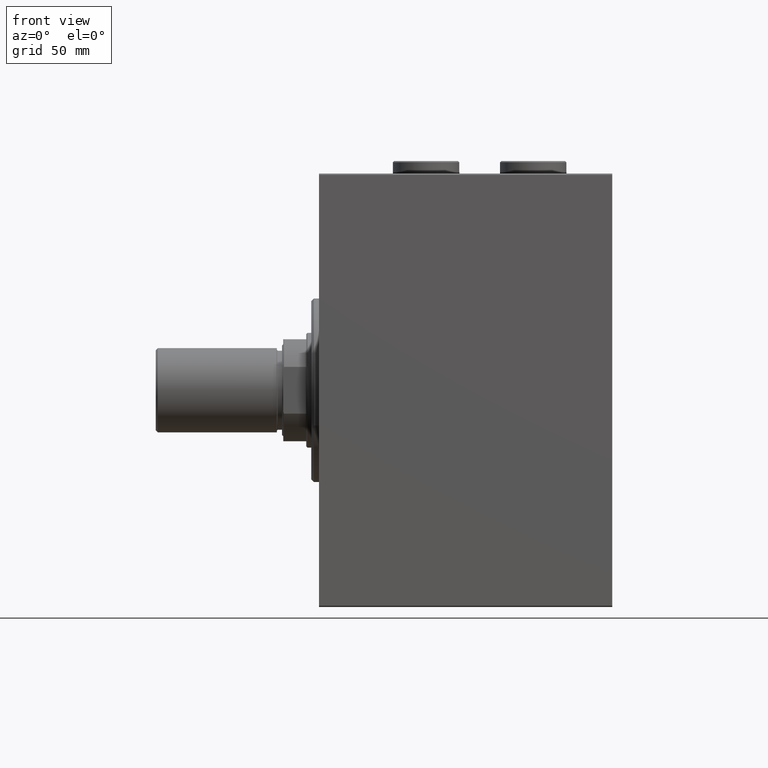
[diagram: clean part render]
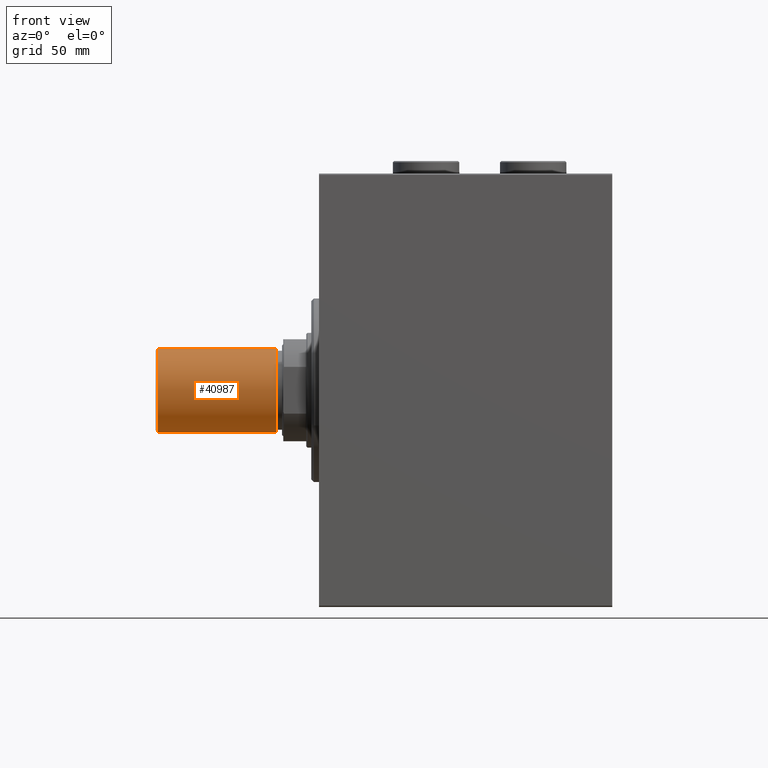
[diagram: same view with one face highlighted and labeled with its STEP entity id]
A machine part, front view. The second image highlights one B-rep face of the part: STEP entity #40987.
In plain terms, the highlighted cylindrical surface (partial cylindrical patch) has radius 16.5 mm, axis along (-1, -0, 0).
Its self-contained STEP definition (entity closure, byte-faithful):
#46 = CARTESIAN_POINT ( 'NONE',  ( 16.50000000000000000, 2.020667218593133100E-15, 47.50000000000000000 ) ) ;
#773 = DIRECTION ( 'NONE',  ( -0.000000000000000000, -0.000000000000000000, -1.000000000000000000 ) ) ;
#1655 = CARTESIAN_POINT ( 'NONE',  ( 0.000000000000000000, 0.000000000000000000, 47.50000000000000000 ) ) ;
#3920 = EDGE_CURVE ( 'NONE', #22239, #15356, #14854, .T. ) ;
#4379 = EDGE_CURVE ( 'NONE', #31624, #21369, #9059, .T. ) ;
#7926 = FACE_OUTER_BOUND ( 'NONE', #34025, .T. ) ;
#8413 = CARTESIAN_POINT ( 'NONE',  ( 16.50000000000000000, 2.020667218593133100E-15, 47.50000000000000000 ) ) ;
#9059 = CIRCLE ( 'NONE', #38511, 16.50000000000000000 ) ;
#10427 = LINE ( 'NONE', #46, #20293 ) ;
#10737 = ORIENTED_EDGE ( 'NONE', *, *, #4379, .F. ) ;
#11571 = LINE ( 'NONE', #40153, #34506 ) ;
#14353 = DIRECTION ( 'NONE',  ( -0.000000000000000000, -0.000000000000000000, -1.000000000000000000 ) ) ;
#14585 = DIRECTION ( 'NONE',  ( -0.000000000000000000, -0.000000000000000000, -1.000000000000000000 ) ) ;
#14849 = DIRECTION ( 'NONE',  ( -1.000000000000000000, 0.000000000000000000, 0.000000000000000000 ) ) ;
#14854 = CIRCLE ( 'NONE', #27485, 16.50000000000000000 ) ;
#14869 = DIRECTION ( 'NONE',  ( 1.000000000000000000, 0.000000000000000000, 0.000000000000000000 ) ) ;
#15356 = VERTEX_POINT ( 'NONE', #26770 ) ;
#15858 = CARTESIAN_POINT ( 'NONE',  ( -16.50000000000000000, 0.000000000000000000, 0.7999999999999951594 ) ) ;
#20211 = EDGE_CURVE ( 'NONE', #31624, #22239, #11571, .T. ) ;
#20293 = VECTOR ( 'NONE', #14353, 1000.000000000000000 ) ;
#21369 = VERTEX_POINT ( 'NONE', #8413 ) ;
#22001 = DIRECTION ( 'NONE',  ( -0.000000000000000000, -0.000000000000000000, 1.000000000000000000 ) ) ;
#22239 = VERTEX_POINT ( 'NONE', #15858 ) ;
#26229 = ORIENTED_EDGE ( 'NONE', *, *, #41135, .F. ) ;
#26346 = DIRECTION ( 'NONE',  ( 0.000000000000000000, 0.000000000000000000, 1.000000000000000000 ) ) ;
#26770 = CARTESIAN_POINT ( 'NONE',  ( 16.50000000000000000, 2.020667218593133100E-15, 0.7999999999999951594 ) ) ;
#27485 = AXIS2_PLACEMENT_3D ( 'NONE', #36528, #22001, #14869 ) ;
#29389 = CARTESIAN_POINT ( 'NONE',  ( 0.000000000000000000, 0.000000000000000000, 47.50000000000000000 ) ) ;
#29572 = DIRECTION ( 'NONE',  ( 1.000000000000000000, 0.000000000000000000, 0.000000000000000000 ) ) ;
#31624 = VERTEX_POINT ( 'NONE', #34924 ) ;
#32372 = CYLINDRICAL_SURFACE ( 'NONE', #33563, 16.50000000000000000 ) ;
#33003 = ORIENTED_EDGE ( 'NONE', *, *, #3920, .T. ) ;
#33563 = AXIS2_PLACEMENT_3D ( 'NONE', #29389, #773, #14849 ) ;
#34025 = EDGE_LOOP ( 'NONE', ( #26229, #10737, #36279, #33003 ) ) ;
#34506 = VECTOR ( 'NONE', #14585, 1000.000000000000000 ) ;
#34924 = CARTESIAN_POINT ( 'NONE',  ( -16.50000000000000000, 0.000000000000000000, 47.50000000000000000 ) ) ;
#36279 = ORIENTED_EDGE ( 'NONE', *, *, #20211, .T. ) ;
#36528 = CARTESIAN_POINT ( 'NONE',  ( 0.000000000000000000, 0.000000000000000000, 0.7999999999999951594 ) ) ;
#38511 = AXIS2_PLACEMENT_3D ( 'NONE', #1655, #26346, #29572 ) ;
#40153 = CARTESIAN_POINT ( 'NONE',  ( -16.50000000000000000, 0.000000000000000000, 47.50000000000000000 ) ) ;
#40987 = ADVANCED_FACE ( 'NONE', ( #7926 ), #32372, .T. ) ;
#41135 = EDGE_CURVE ( 'NONE', #21369, #15356, #10427, .T. ) ;